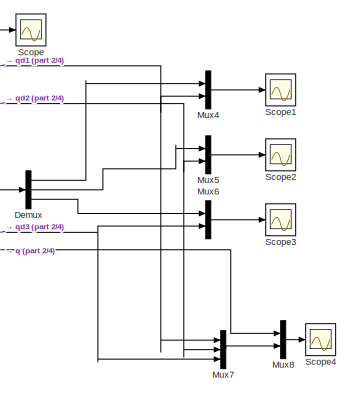
[diagram: root canvas - part 1/4, top right region]
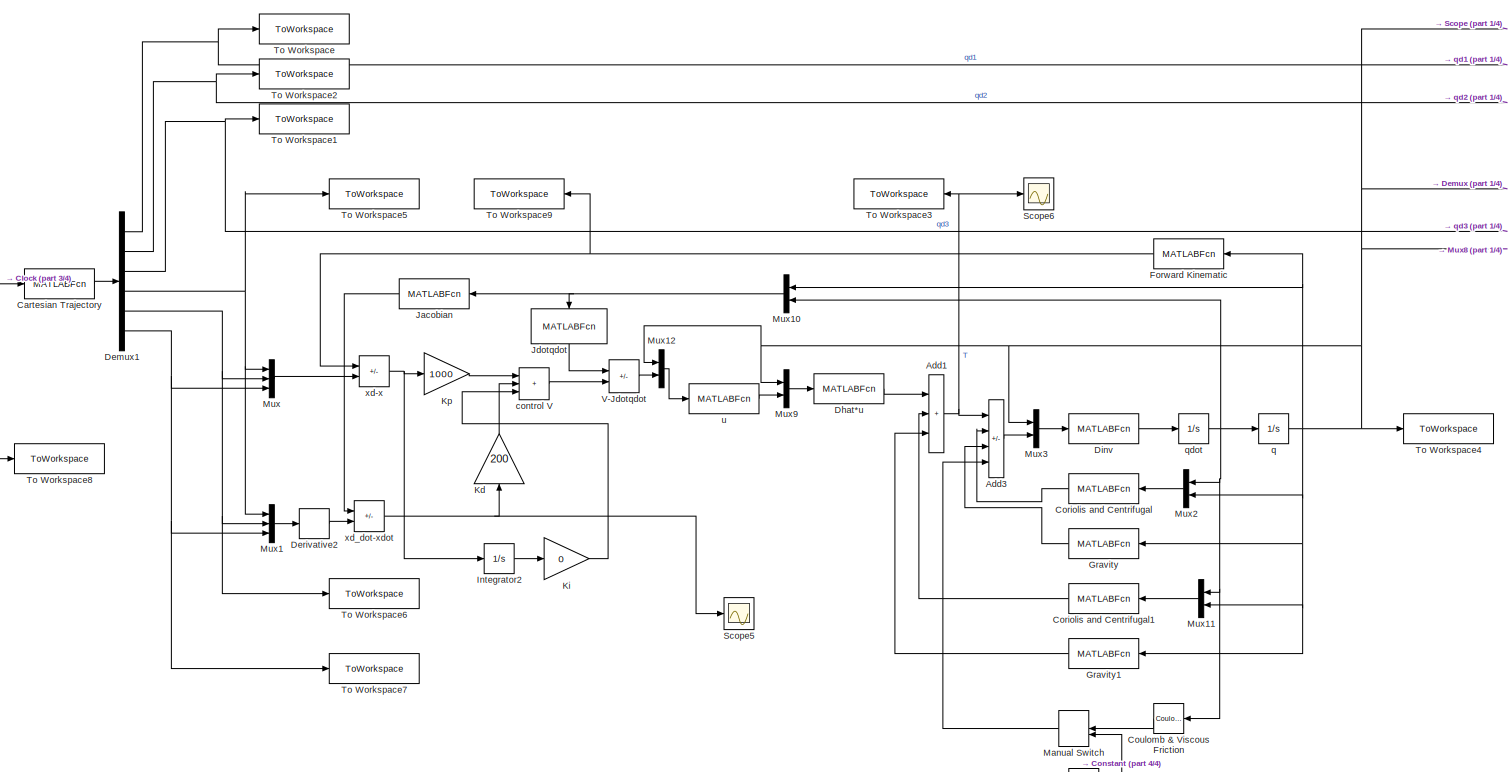
[diagram: root canvas - part 2/4, most of the canvas]
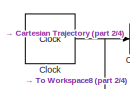
[diagram: root canvas - part 3/4, middle left region]
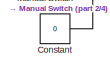
[diagram: root canvas - part 4/4, bottom center region]
MODEL slx_68ec0ffe7fda
KIND model
CONFIG AbsTol = auto
CONFIG EnableMultiTasking = off
CONFIG FixedStep = auto
CONFIG MaxStep = auto
CONFIG MinStep = auto
CONFIG RelTol = 1e-3
CONFIG SampleTimeConstraint = Unconstrained
CONFIG SolverName = ode3
CONFIG StartTime = 0.0
CONFIG StopTime = 2*pi
BLOCK [Sum] Add1
  IconShape = rectangular
  Inputs = +++
BLOCK [Sum] Add3
  IconShape = rectangular
  Inputs = +---
BLOCK [MATLABFcn] Cartesian Trajectory
  MATLABFcn = Cartesian_trajectory(u)
  Output1D = off
  OutputDimensions = 6
BLOCK [Clock] Clock
  Decimation = 1
BLOCK [Constant] Constant
  Value = 0
BLOCK [MATLABFcn] Coriolis and Centrifugal
  MATLABFcn = Coriolis3(u)
  Output1D = off
  OutputDimensions = 3
BLOCK [MATLABFcn] Coriolis and Centrifugal1
  MATLABFcn = Coriolis3(u)
  Output1D = off
  OutputDimensions = 3
BLOCK [Reference] Coulomb & Viscous Friction  REF=simulink/Discontinuities/Coulomb &
Viscous Friction
  SourceBlock = simulink/Discontinuities/Coulomb &\nViscous Friction
  SourceType = Coulombic and Viscous Friction
BLOCK [Demux] Demux
  Outputs = 3
BLOCK [Demux] Demux1
  Outputs = 6
BLOCK [Derivative] Derivative2
BLOCK [MATLABFcn] Dhat*u
  MATLABFcn = Dhat3(u)
  Output1D = off
  OutputDimensions = 3
BLOCK [MATLABFcn] Dinv
  MATLABFcn = Dinv3(u)
  Output1D = off
  OutputDimensions = 3
BLOCK [MATLABFcn] Forward Kinematic
  MATLABFcn = Forward_kin3(u)
  Output1D = off
  OutputDimensions = 3
BLOCK [MATLABFcn] Gravity
  MATLABFcn = Gravity3(u)
  Output1D = off
  OutputDimensions = 3
BLOCK [MATLABFcn] Gravity1
  MATLABFcn = Gravity3(u)
  Output1D = off
  OutputDimensions = 3
BLOCK [Integrator] Integrator2
  InitialCondition = [0.408;0.408;0.53];
BLOCK [MATLABFcn] Jacobian
  MATLABFcn = Jacobian3(u)
  Output1D = off
  OutputDimensions = 3
BLOCK [MATLABFcn] Jdotqdot
  MATLABFcn = Jdotqdot3(u)
  NameLocation = left
  Output1D = off
  OutputDimensions = 3
BLOCK [Gain] Kd
  Gain = 200
  NameLocation = right
BLOCK [Gain] Ki
  Gain = 0
BLOCK [Gain] Kp
  Gain = 1000
BLOCK [ManualSwitch] Manual Switch
BLOCK [Mux] Mux
  DisplayOption = bar
  Inputs = 3
BLOCK [Mux] Mux1
  DisplayOption = bar
  Inputs = 3
BLOCK [Mux] Mux10
  DisplayOption = bar
  Inputs = 2
BLOCK [Mux] Mux11
  DisplayOption = bar
  Inputs = 2
BLOCK [Mux] Mux12
  DisplayOption = bar
  Inputs = 2
BLOCK [Mux] Mux2
  DisplayOption = bar
  Inputs = 2
BLOCK [Mux] Mux3
  DisplayOption = bar
  Inputs = 2
BLOCK [Mux] Mux4
  DisplayOption = bar
  Inputs = 2
BLOCK [Mux] Mux5
  DisplayOption = bar
  Inputs = 2
BLOCK [Mux] Mux6
  DisplayOption = bar
  Inputs = 2
BLOCK [Mux] Mux7
  DisplayOption = bar
  Inputs = 3
BLOCK [Mux] Mux8
  DisplayOption = bar
  Inputs = 2
BLOCK [Mux] Mux9
  DisplayOption = bar
  Inputs = 2
BLOCK [Scope] Scope
  Floating = off
  NumInputPorts = 1
  ScopeSpecificationString = Simulink.scopes.TimeScopeBlockCfg('CurrentConfiguration', extmgr.ConfigurationSet(extmgr.Configuration('Core','General UI',true,'FigureColor',[1 1 1]),extmgr.Configuration('Core','Source UI',true),extmgr.Configuration('Sources','WiredSimulink',true),extmgr.Configuration('Visuals','Time Domain',true,'SerializedDisplays',{struct('MinYLimReal','-2.61235','MaxYLimReal','1.55565','YLabelReal','','MinYL...<+1520ch>
BLOCK [Scope] Scope1
  Floating = off
  NumInputPorts = 1
  ScopeSpecificationString = Simulink.scopes.TimeScopeBlockCfg('CurrentConfiguration', extmgr.ConfigurationSet(extmgr.Configuration('Core','General UI',true,'FigureColor',[1 1 1]),extmgr.Configuration('Core','Source UI',true),extmgr.Configuration('Sources','WiredSimulink',true,'DataLoggingVariableName','ScopeData1'),extmgr.Configuration('Visuals','Time Domain',true,'SerializedDisplays',{struct('MinYLimReal','0.37978','MaxYLim...<+1570ch>
BLOCK [Scope] Scope2
  Floating = off
  NumInputPorts = 1
  ScopeSpecificationString = Simulink.scopes.TimeScopeBlockCfg('CurrentConfiguration', extmgr.ConfigurationSet(extmgr.Configuration('Core','General UI',true,'FigureColor',[1 1 1]),extmgr.Configuration('Core','Source UI',true),extmgr.Configuration('Sources','WiredSimulink',true,'DataLoggingVariableName','ScopeData2'),extmgr.Configuration('Visuals','Time Domain',true,'SerializedDisplays',{struct('MinYLimReal','0.4694','MaxYLimR...<+1566ch>
BLOCK [Scope] Scope3
  Floating = off
  NumInputPorts = 1
  ScopeSpecificationString = Simulink.scopes.TimeScopeBlockCfg('CurrentConfiguration', extmgr.ConfigurationSet(extmgr.Configuration('Core','General UI',true,'FigureColor',[1 1 1]),extmgr.Configuration('Core','Source UI',true),extmgr.Configuration('Sources','WiredSimulink',true,'DataLoggingVariableName','ScopeData3'),extmgr.Configuration('Visuals','Time Domain',true,'SerializedDisplays',{struct('MinYLimReal','-2.35521','MaxYLi...<+1574ch>
BLOCK [Scope] Scope4
  Floating = off
  NumInputPorts = 1
  ScopeSpecificationString = Simulink.scopes.TimeScopeBlockCfg('CurrentConfiguration', extmgr.ConfigurationSet(extmgr.Configuration('Core','General UI',true,'FigureColor',[1 1 1]),extmgr.Configuration('Core','Source UI',true),extmgr.Configuration('Sources','WiredSimulink',true,'DataLoggingVariableName','ScopeData1'),extmgr.Configuration('Visuals','Time Domain',true,'SerializedDisplays',{struct('MinYLimReal','-2.59817','MaxYLi...<+1937ch>
BLOCK [Scope] Scope5
  Floating = off
  NumInputPorts = 1
  ScopeSpecificationString = Simulink.scopes.TimeScopeBlockCfg('CurrentConfiguration', extmgr.ConfigurationSet(extmgr.Configuration('Core','General UI',true,'FigureColor',[1 1 1]),extmgr.Configuration('Core','Source UI',true),extmgr.Configuration('Sources','WiredSimulink',true,'DataLoggingVariableName','ScopeData1'),extmgr.Configuration('Visuals','Time Domain',true,'SerializedDisplays',{struct('MinYLimReal','-0.04736','MaxYLi...<+1936ch>
BLOCK [Scope] Scope6
  Floating = off
  NumInputPorts = 1
  ScopeSpecificationString = Simulink.scopes.TimeScopeBlockCfg('CurrentConfiguration', extmgr.ConfigurationSet(extmgr.Configuration('Core','General UI',true,'FigureColor',[1 1 1]),extmgr.Configuration('Core','Source UI',true),extmgr.Configuration('Sources','WiredSimulink',true,'DataLoggingVariableName','ScopeData1'),extmgr.Configuration('Visuals','Time Domain',true,'SerializedDisplays',{struct('MinYLimReal','-80.70377','MaxYL...<+1910ch>
BLOCK [ToWorkspace] To Workspace
  FixptAsFi = on
  MaxDataPoints = inf
  SampleTime = 0.001
  SaveFormat = Timeseries
  VariableName = qd1
BLOCK [ToWorkspace] To Workspace1
  FixptAsFi = on
  MaxDataPoints = inf
  SampleTime = 0.001
  SaveFormat = Timeseries
  VariableName = qd3
BLOCK [ToWorkspace] To Workspace2
  FixptAsFi = on
  MaxDataPoints = inf
  SampleTime = 0.001
  SaveFormat = Timeseries
  VariableName = qd2
BLOCK [ToWorkspace] To Workspace3
  FixptAsFi = on
  MaxDataPoints = inf
  SampleTime = 0.001
  VariableName = T_out
BLOCK [ToWorkspace] To Workspace4
  FixptAsFi = on
  MaxDataPoints = inf
  SampleTime = 0.001
  SaveFormat = Timeseries
  VariableName = q
BLOCK [ToWorkspace] To Workspace5
  FixptAsFi = on
  MaxDataPoints = inf
  SampleTime = 0.001
  VariableName = xd
BLOCK [ToWorkspace] To Workspace6
  FixptAsFi = on
  MaxDataPoints = inf
  SampleTime = 0.001
  VariableName = yd
BLOCK [ToWorkspace] To Workspace7
  FixptAsFi = on
  MaxDataPoints = inf
  SampleTime = 0.001
  VariableName = zd
BLOCK [ToWorkspace] To Workspace8
  FixptAsFi = on
  MaxDataPoints = inf
  SampleTime = 0.001
  SaveFormat = Timeseries
  VariableName = t
BLOCK [ToWorkspace] To Workspace9
  FixptAsFi = on
  MaxDataPoints = inf
  SampleTime = 0.001
  VariableName = x
BLOCK [Sum] V-Jdotqdot
  IconShape = rectangular
  Inputs = -+
BLOCK [Sum] control V
  IconShape = rectangular
  Inputs = +++
BLOCK [Integrator] q
  InitialCondition = [0.9587;0.7246;-1.1694]
BLOCK [Integrator] qdot
  InitialCondition = [0;0;0];
BLOCK [MATLABFcn] u
  MATLABFcn = u3(u)
  Output1D = off
  OutputDimensions = 3
BLOCK [Sum] xd-x
  IconShape = rectangular
  Inputs = -+
BLOCK [Sum] xd_dot-xdot
  IconShape = rectangular
  Inputs = -+
NET Add1:1 -> Add3:1, Scope6:1, To Workspace3:1
LINE Add3:1 -> Mux3:2
LINE Cartesian Trajectory:1 -> Demux1:1
NET Clock:1 -> Cartesian Trajectory:1, To Workspace8:1
LINE Constant:1 -> Manual Switch:2
LINE Coriolis and Centrifugal1:1 -> Add1:2
LINE Coriolis and Centrifugal:1 -> Add3:2
LINE Coulomb & Viscous Friction:1 -> Manual Switch:1
NET Demux1:1 -> Mux4:2, Mux7:1, To Workspace:1
NET Demux1:2 -> Mux5:2, Mux7:2, To Workspace2:1
NET Demux1:3 -> Mux6:2, Mux7:3, To Workspace1:1
NET Demux1:4 -> Mux1:1, Mux:1, To Workspace5:1
NET Demux1:5 -> Mux1:2, Mux:2, To Workspace6:1
NET Demux1:6 -> Mux1:3, Mux:3, To Workspace7:1
LINE Demux:1 -> Mux4:1
LINE Demux:2 -> Mux5:1
LINE Demux:3 -> Mux6:1
LINE Derivative2:1 -> xd_dot-xdot:2
LINE Dhat*u:1 -> Add1:1
LINE Dinv:1 -> qdot:1
NET Forward Kinematic:1 -> To Workspace9:1, xd-x:1
LINE Gravity1:1 -> Add1:3
LINE Gravity:1 -> Add3:3
LINE Integrator2:1 -> Ki:1
LINE Jacobian:1 -> xd_dot-xdot:1
LINE Jdotqdot:1 -> V-Jdotqdot:1
LINE Kd:1 -> control V:2
LINE Ki:1 -> control V:3
LINE Kp:1 -> control V:1
LINE Manual Switch:1 -> Add3:4
NET Mux10:1 -> Jacobian:1, Jdotqdot:1
LINE Mux11:1 -> Coriolis and Centrifugal1:1
LINE Mux12:1 -> u:1
LINE Mux1:1 -> Derivative2:1
LINE Mux2:1 -> Coriolis and Centrifugal:1
LINE Mux3:1 -> Dinv:1
LINE Mux4:1 -> Scope1:1
LINE Mux5:1 -> Scope2:1
LINE Mux6:1 -> Scope3:1
LINE Mux7:1 -> Mux8:2
LINE Mux8:1 -> Scope4:1
LINE Mux9:1 -> Dhat*u:1
LINE Mux:1 -> xd-x:2
LINE V-Jdotqdot:1 -> Mux12:2
LINE control V:1 -> V-Jdotqdot:2
NET q:1 -> Demux:1, Forward Kinematic:1, Gravity1:1, Gravity:1, Mux10:1, Mux11:2, Mux12:1, Mux2:2, Mux3:1, Mux8:1, Mux9:1, Scope:1, To Workspace4:1
NET qdot:1 -> Coulomb & Viscous Friction:1, Mux10:2, Mux11:1, Mux2:1, q:1
LINE u:1 -> Mux9:2
NET xd-x:1 -> Integrator2:1, Kp:1
NET xd_dot-xdot:1 -> Kd:1, Scope5:1
note: NET lines group one-source signal fan-out (src -> all destinations, sorted); 1:1 wires keep LINE
